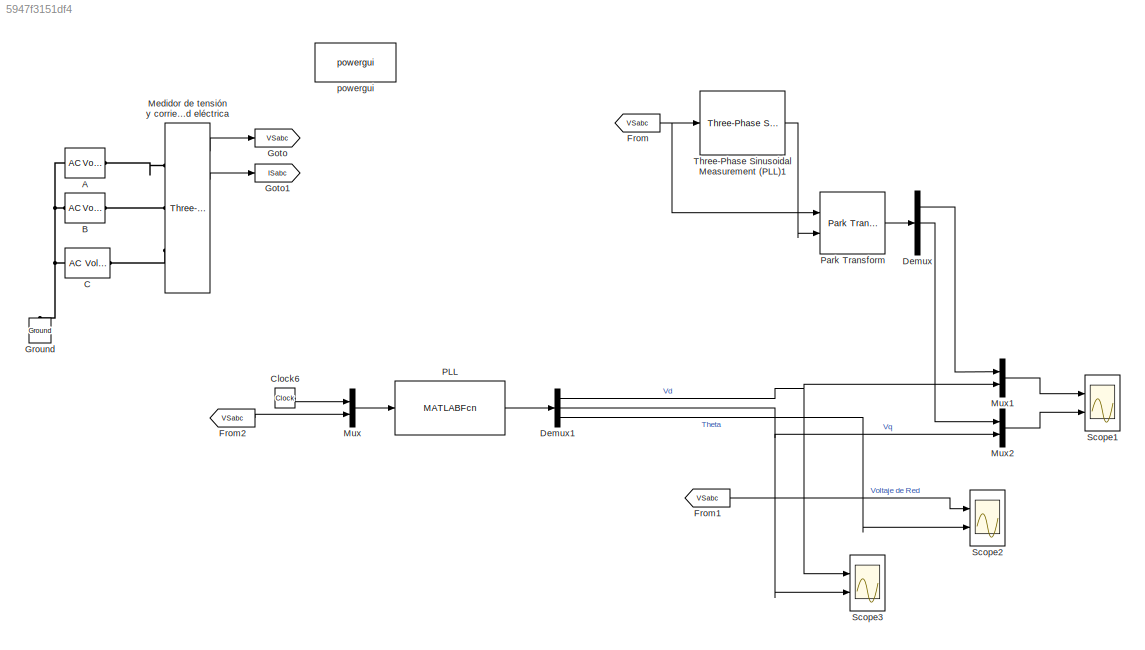
MODEL slx_5947f3151df4
KIND model
CONFIG AbsTol = auto
CONFIG EnableMultiTasking = off
CONFIG FixedStep = 1e-6
CONFIG InitFcn = GlobalParam
CONFIG MaxStep = 1e-4
CONFIG MinStep = auto
CONFIG RelTol = 1e-3
CONFIG SampleTimeConstraint = Unconstrained
CONFIG Solver = ode1
CONFIG SolverName = ode1
CONFIG StartTime = 0.0
CONFIG StopTime = 0.05
BLOCK [Reference] A   REF=powerlib/Electrical
Sources/AC Voltage Source
  Ports = [0, 0, 0, 0, 0, 1, 1]
  SourceBlock = powerlib/Electrical\nSources/AC Voltage Source
  SourceProductBaseCode = PS
  SourceProductName = Simscape Power Systems
  SourceType = AC Voltage Source
BLOCK [Reference] B   REF=powerlib/Electrical
Sources/AC Voltage Source
  Ports = [0, 0, 0, 0, 0, 1, 1]
  SourceBlock = powerlib/Electrical\nSources/AC Voltage Source
  SourceProductBaseCode = PS
  SourceProductName = Simscape Power Systems
  SourceType = AC Voltage Source
BLOCK [Reference] C   REF=powerlib/Electrical
Sources/AC Voltage Source
  Ports = [0, 0, 0, 0, 0, 1, 1]
  SourceBlock = powerlib/Electrical\nSources/AC Voltage Source
  SourceProductBaseCode = PS
  SourceProductName = Simscape Power Systems
  SourceType = AC Voltage Source
BLOCK [Clock] Clock6
BLOCK [Demux] Demux
  DisplayOption = bar
  Outputs = 3
  Ports = [1, 3]
BLOCK [Demux] Demux1
  DisplayOption = bar
  Outputs = 3
  Ports = [1, 3]
BLOCK [From] From
  GotoTag = VSabc
BLOCK [From] From1
  GotoTag = VSabc
BLOCK [From] From2
  GotoTag = VSabc
BLOCK [Goto] Goto
  GotoTag = VSabc
BLOCK [Goto] Goto1
  GotoTag = ISabc
BLOCK [Reference] Ground  REF=powerlib/Elements/Ground
  Ports = [0, 0, 0, 0, 0, 1]
  SourceBlock = powerlib/Elements/Ground
  SourceProductBaseCode = PS
  SourceProductName = Simscape Power Systems
  SourceType = Ground
BLOCK [Reference] Medidor de tensión y corriente de la red eléctrica  REF=powerlib/Measurements/Three-Phase
V-I Measurement
  Ports = [0, 2, 0, 0, 0, 3, 3]
  SourceBlock = powerlib/Measurements/Three-Phase\nV-I Measurement
  SourceProductBaseCode = PS
  SourceProductName = Simscape Power Systems
  SourceType = Three-Phase VI Measurement
BLOCK [Mux] Mux
  DisplayOption = bar
  Inputs = 2
  Ports = [2, 1]
BLOCK [Mux] Mux1
  DisplayOption = bar
  Inputs = 2
  Ports = [2, 1]
BLOCK [Mux] Mux2
  DisplayOption = bar
  Inputs = 2
  Ports = [2, 1]
BLOCK [MATLABFcn] PLL 
  MATLABFcn = PLL
  OutputDimensions = 3
  Ports = [1, 1]
BLOCK [Reference] Park Transform  REF=peTransforms/Park Transform
  Ports = [2, 1]
  SourceBlock = peTransforms/Park Transform
  SourceType = Park Transform
BLOCK [Scope] Scope1
  NumInputPorts = 2
  Ports = [2]
  ScopeSpecificationString = Simulink.scopes.TimeScopeBlockCfg('CurrentConfiguration', extmgr.ConfigurationSet(extmgr.Configuration('Core','General UI',true),extmgr.Configuration('Core','Source UI',true),extmgr.Configuration('Sources','WiredSimulink',true,'DataLoggingVariableName','ScopeData1'),extmgr.Configuration('Visuals','Time Domain',true,'SerializedDisplays',{struct('MinYLimReal','-259.80762','MaxYLimReal','259.80762','...<+2130ch>
BLOCK [Scope] Scope2
  NumInputPorts = 2
  Ports = [2]
  ScopeSpecificationString = Simulink.scopes.TimeScopeBlockCfg('CurrentConfiguration', extmgr.ConfigurationSet(extmgr.Configuration('Core','General UI',true,'FigureColor',[1 1 1]),extmgr.Configuration('Core','Source UI',true),extmgr.Configuration('Sources','WiredSimulink',true,'DataLoggingVariableName','ScopeData1'),extmgr.Configuration('Visuals','Time Domain',true,'SerializedDisplays',{struct('MinYLimReal','-212.13203','MaxY...<+2563ch>
BLOCK [Scope] Scope3
  NumInputPorts = 2
  Ports = [2]
  ScopeSpecificationString = Simulink.scopes.TimeScopeBlockCfg('CurrentConfiguration', extmgr.ConfigurationSet(extmgr.Configuration('Core','General UI',true,'FigureColor',[1 1 1]),extmgr.Configuration('Core','Source UI',true),extmgr.Configuration('Sources','WiredSimulink',true,'DataLoggingVariableName','ScopeData1'),extmgr.Configuration('Visuals','Time Domain',true,'SerializedDisplays',{struct('MinYLimReal','-259.77761','MaxY...<+1947ch>
BLOCK [Reference] Three-Phase Sinusoidal Measurement (PLL)1  REF=peSinusoidalMeasurement/Three-Phase Sinusoidal
Measurement (PLL)
  Ports = [1, 3]
  SourceBlock = peSinusoidalMeasurement/Three-Phase Sinusoidal\nMeasurement (PLL)
  SourceType = Three-Phase Sinusoidal Measurement (PLL)
BLOCK [Reference] powergui  REF=powerlib/powergui
  Ports = []
  Priority = 1
  SourceBlock = powerlib/powergui
  SourceProductBaseCode = PS
  SourceProductName = Simscape Power Systems
  SourceType = PSB option menu block
LINE Clock6:1 -> Mux:1
NET Demux1:1 -> Mux1:2, Scope3:1
NET Demux1:2 -> Mux2:2, Scope3:2
LINE Demux1:3 -> Scope2:2
LINE Demux:1 -> Mux1:1
LINE Demux:2 -> Mux2:1
LINE From1:1 -> Scope2:1
LINE From2:1 -> Mux:2
NET From:1 -> Park Transform:1, Three-Phase Sinusoidal Measurement (PLL)1:1
LINE Medidor de tensión y corriente de la red eléctrica:1 -> Goto:1
LINE Medidor de tensión y corriente de la red eléctrica:2 -> Goto1:1
LINE Mux1:1 -> Scope1:1
LINE Mux2:1 -> Scope1:2
LINE Mux:1 -> PLL :1
LINE PLL :1 -> Demux1:1
LINE Park Transform:1 -> Demux:1
LINE Three-Phase Sinusoidal Measurement (PLL)1:2 -> Park Transform:2
PNET net1: A :LConn1 -- B :LConn1 -- C :LConn1 -- Ground:LConn1
PLINE A :RConn1 -- Medidor de tensión y corriente de la red eléctrica:LConn1
PLINE B :RConn1 -- Medidor de tensión y corriente de la red eléctrica:LConn2
PLINE C :RConn1 -- Medidor de tensión y corriente de la red eléctrica:LConn3
note: NET lines group one-source signal fan-out (src -> all destinations, sorted); 1:1 wires keep LINE; PNET lines group multi-terminal physical nets as a canonical sorted terminal list (undirected conserving connections); 2-terminal nets keep the pairwise PLINE form
